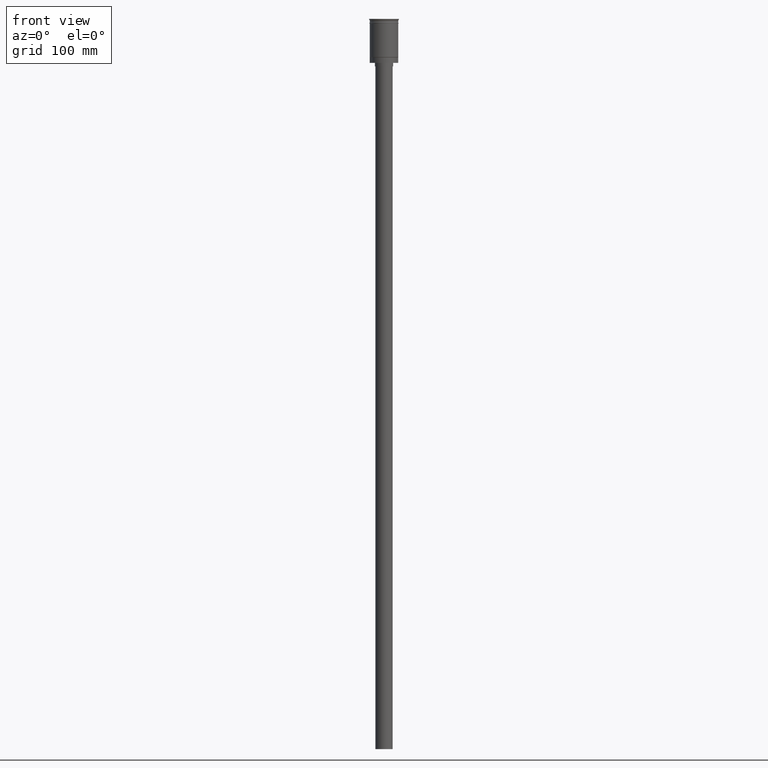
[diagram: clean part render]
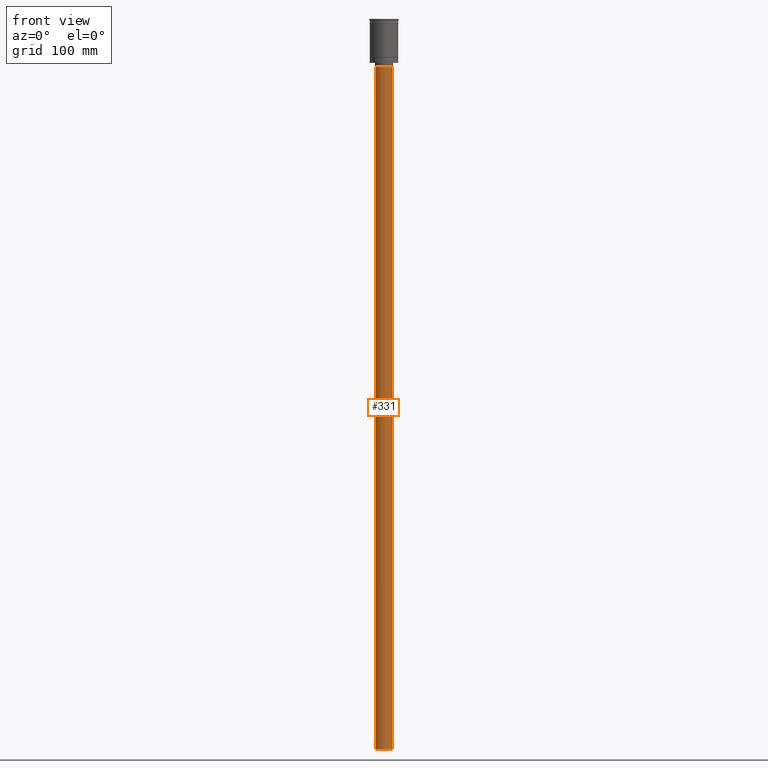
[diagram: same view with one face highlighted and labeled with its STEP entity id]
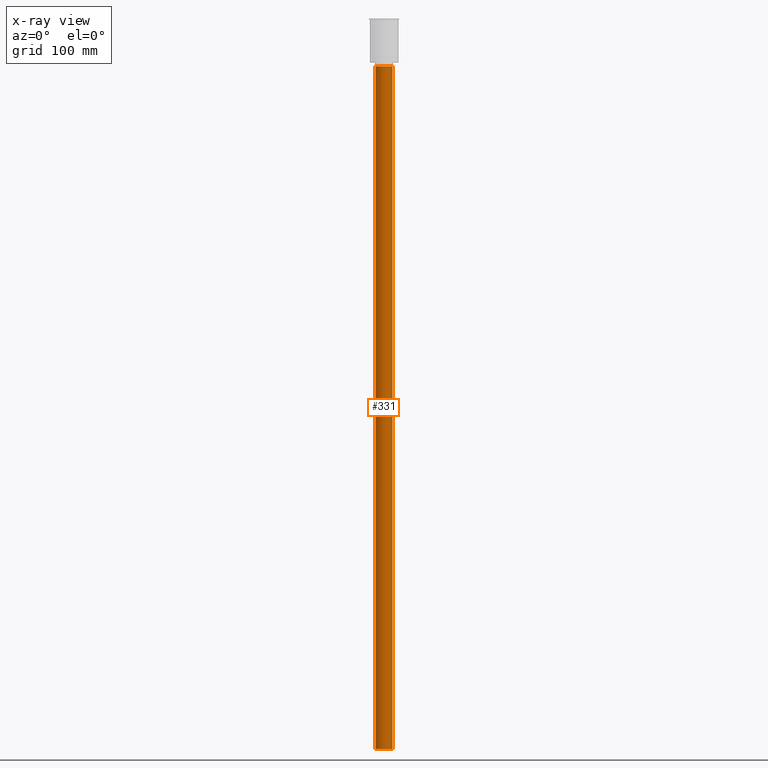
[diagram: x-ray of the same camera — body ghosted, the highlighted face saturated]
A machine part, front view. The second image highlights one B-rep face of the part: STEP entity #331.
The next image is the same camera in x-ray: the body ghosted, the highlighted face saturated — about 0% of this face is hidden behind the body in this view.
In plain terms, the highlighted cylindrical surface (edge-blend (fillet) strip) has radius 7.5 mm, axis along (-0, -0, 1).
Its self-contained STEP definition (entity closure, byte-faithful):
#19 = EDGE_CURVE ( 'NONE', #664, #430, #1112, .T. ) ;
#25 = EDGE_LOOP ( 'NONE', ( #813, #183, #247, #1174 ) ) ;
#28 = LINE ( 'NONE', #632, #1429 ) ;
#120 = DIRECTION ( 'NONE',  ( -1.000000000000000000, 0.000000000000000000, 0.000000000000000000 ) ) ;
#183 = ORIENTED_EDGE ( 'NONE', *, *, #863, .F. ) ;
#208 = CYLINDRICAL_SURFACE ( 'NONE', #1536, 7.500000000000000000 ) ;
#247 = ORIENTED_EDGE ( 'NONE', *, *, #297, .T. ) ;
#281 = EDGE_CURVE ( 'NONE', #1259, #430, #1094, .T. ) ;
#297 = EDGE_CURVE ( 'NONE', #413, #664, #28, .T. ) ;
#331 = ADVANCED_FACE ( 'NONE', ( #452 ), #208, .T. ) ;
#413 = VERTEX_POINT ( 'NONE', #563 ) ;
#430 = VERTEX_POINT ( 'NONE', #607 ) ;
#452 = FACE_OUTER_BOUND ( 'NONE', #25, .T. ) ;
#563 = CARTESIAN_POINT ( 'NONE',  ( 7.500000000000000000, 0.000000000000000000, -638.5000000000000000 ) ) ;
#607 = CARTESIAN_POINT ( 'NONE',  ( -7.500000000000000000, 9.184850993605147944E-16, -41.50000000000000000 ) ) ;
#617 = DIRECTION ( 'NONE',  ( -1.000000000000000000, 0.000000000000000000, 0.000000000000000000 ) ) ;
#632 = CARTESIAN_POINT ( 'NONE',  ( 7.500000000000000000, 0.000000000000000000, -638.5000000000000000 ) ) ;
#641 = DIRECTION ( 'NONE',  ( -0.000000000000000000, -0.000000000000000000, 1.000000000000000000 ) ) ;
#664 = VERTEX_POINT ( 'NONE', #1523 ) ;
#813 = ORIENTED_EDGE ( 'NONE', *, *, #281, .F. ) ;
#850 = DIRECTION ( 'NONE',  ( 0.000000000000000000, 0.000000000000000000, -1.000000000000000000 ) ) ;
#863 = EDGE_CURVE ( 'NONE', #413, #1259, #939, .T. ) ;
#876 = DIRECTION ( 'NONE',  ( -0.000000000000000000, -0.000000000000000000, 1.000000000000000000 ) ) ;
#885 = AXIS2_PLACEMENT_3D ( 'NONE', #976, #850, #617 ) ;
#939 = CIRCLE ( 'NONE', #885, 7.500000000000000000 ) ;
#957 = DIRECTION ( 'NONE',  ( 1.000000000000000000, 0.000000000000000000, 0.000000000000000000 ) ) ;
#976 = CARTESIAN_POINT ( 'NONE',  ( 0.000000000000000000, 0.000000000000000000, -638.5000000000000000 ) ) ;
#1005 = CARTESIAN_POINT ( 'NONE',  ( -7.500000000000000000, 9.184850993605147944E-16, -638.5000000000000000 ) ) ;
#1080 = DIRECTION ( 'NONE',  ( -0.000000000000000000, -0.000000000000000000, 1.000000000000000000 ) ) ;
#1087 = DIRECTION ( 'NONE',  ( 0.000000000000000000, 0.000000000000000000, -1.000000000000000000 ) ) ;
#1094 = LINE ( 'NONE', #1005, #1560 ) ;
#1112 = CIRCLE ( 'NONE', #1317, 7.500000000000000000 ) ;
#1174 = ORIENTED_EDGE ( 'NONE', *, *, #19, .T. ) ;
#1188 = CARTESIAN_POINT ( 'NONE',  ( 0.000000000000000000, 0.000000000000000000, -638.5000000000000000 ) ) ;
#1230 = CARTESIAN_POINT ( 'NONE',  ( -7.500000000000000000, 9.184850993605147944E-16, -638.5000000000000000 ) ) ;
#1231 = CARTESIAN_POINT ( 'NONE',  ( 0.000000000000000000, 0.000000000000000000, -41.50000000000000000 ) ) ;
#1259 = VERTEX_POINT ( 'NONE', #1230 ) ;
#1317 = AXIS2_PLACEMENT_3D ( 'NONE', #1231, #1087, #120 ) ;
#1429 = VECTOR ( 'NONE', #641, 1000.000000000000000 ) ;
#1523 = CARTESIAN_POINT ( 'NONE',  ( 7.500000000000000000, 0.000000000000000000, -41.50000000000000000 ) ) ;
#1536 = AXIS2_PLACEMENT_3D ( 'NONE', #1188, #1080, #957 ) ;
#1560 = VECTOR ( 'NONE', #876, 1000.000000000000000 ) ;